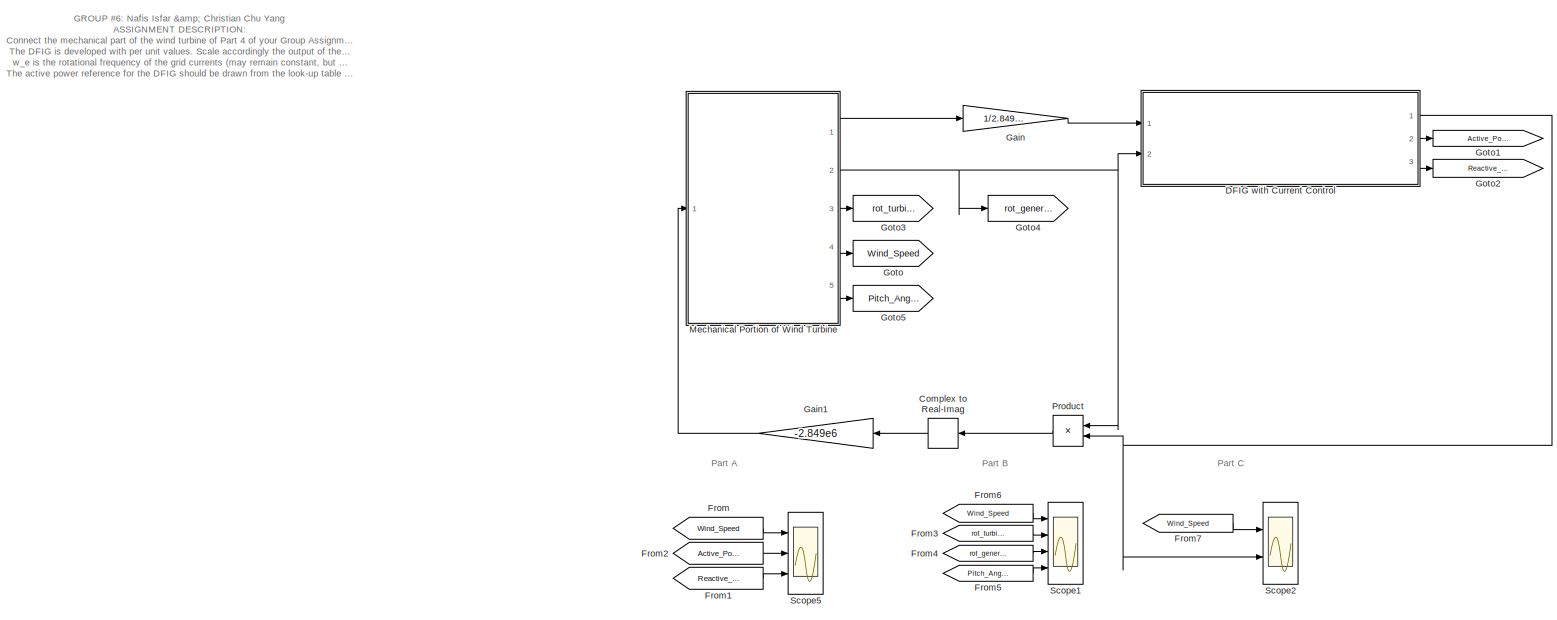
[diagram: root canvas - part 1/1, most of the canvas]
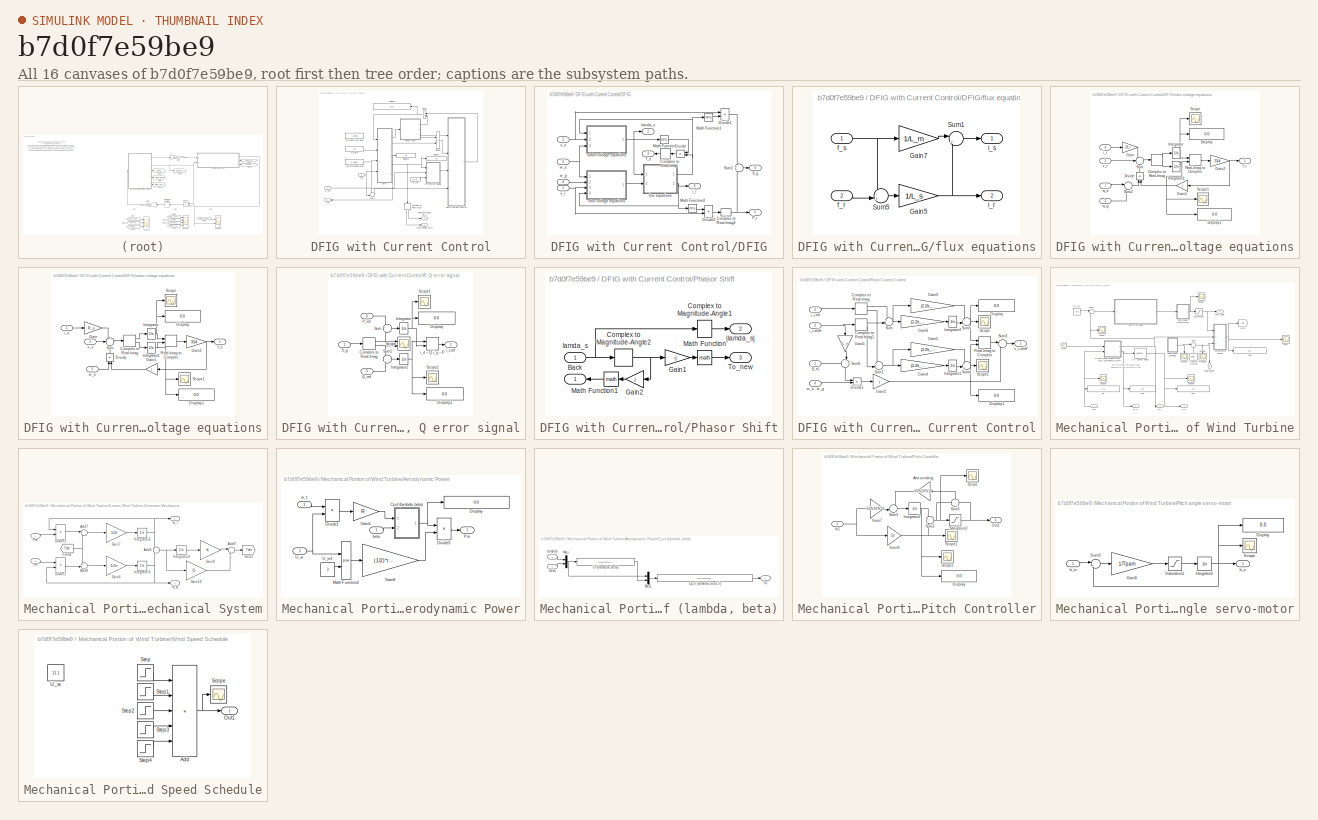
[diagram: thumbnail index - all 16 canvases of the model, root first then tree order]
MODEL slx_b7d0f7e59be9
KIND model
CONFIG AbsTol = auto
CONFIG EnableMultiTasking = off
CONFIG FixedStep = auto
CONFIG MaxStep = auto
CONFIG MinStep = auto
CONFIG RelTol = 1e-3
CONFIG SampleTimeConstraint = Unconstrained
CONFIG Solver = ode23t
CONFIG SolverName = ode23t
CONFIG StartTime = 0.0
CONFIG StopTime = 30
BLOCK [ComplexToRealImag] Complex to Real-Imag
  Output = Real
  Ports = [1, 1]
BLOCK [SubSystem] DFIG with Current Control
  Ports = [2, 3]
BLOCK [Outport] DFIG with Current Control/Active Power DFIG
  Port = 2
BLOCK [ComplexToRealImag] DFIG with Current Control/Complex to Real-Imag
  Ports = [1, 2]
BLOCK [SubSystem] DFIG with Current Control/DFIG
  Ports = [4, 5]
BLOCK [ComplexToRealImag] DFIG with Current Control/DFIG/Complex to Real-Imag
  Output = Imag
  Ports = [1, 1]
BLOCK [ComplexToRealImag] DFIG with Current Control/DFIG/Complex to Real-Imag2
  Output = Real
  Ports = [1, 1]
BLOCK [Product] DFIG with Current Control/DFIG/Divide
  Inputs = **
  Ports = [2, 1]
BLOCK [Product] DFIG with Current Control/DFIG/Divide1
  Inputs = **
  Ports = [2, 1]
BLOCK [Product] DFIG with Current Control/DFIG/Divide2
  Inputs = **
  Ports = [2, 1]
BLOCK [Math] DFIG with Current Control/DFIG/Math Function
  Operator = conj
  Ports = [1, 1]
  SignedPower = on
BLOCK [Math] DFIG with Current Control/DFIG/Math Function1
  Operator = conj
  Ports = [1, 1]
  SignedPower = on
BLOCK [Math] DFIG with Current Control/DFIG/Math Function2
  Operator = conj
  Ports = [1, 1]
  SignedPower = on
BLOCK [Outport] DFIG with Current Control/DFIG/P_r
  Port = 5
BLOCK [Outport] DFIG with Current Control/DFIG/S_g
  Port = 4
BLOCK [Sum] DFIG with Current Control/DFIG/Sum1
  Ports = [2, 1]
BLOCK [Outport] DFIG with Current Control/DFIG/T_e
  Port = 3
BLOCK [SubSystem] DFIG with Current Control/DFIG/flux equations
  Ports = [2, 2]
BLOCK [Gain] DFIG with Current Control/DFIG/flux equations/Gain5
  Gain = 1/L_s
BLOCK [Gain] DFIG with Current Control/DFIG/flux equations/Gain7
  Gain = 1/L_m
BLOCK [Sum] DFIG with Current Control/DFIG/flux equations/Sum1
  Inputs = |+-
  Ports = [2, 1]
BLOCK [Sum] DFIG with Current Control/DFIG/flux equations/Sum5
  Inputs = -+|
  Ports = [2, 1]
BLOCK [Inport] DFIG with Current Control/DFIG/flux equations/f_r
  Port = 2
BLOCK [Inport] DFIG with Current Control/DFIG/flux equations/f_s
BLOCK [Outport] DFIG with Current Control/DFIG/flux equations/i_r
  Port = 2
BLOCK [Outport] DFIG with Current Control/DFIG/flux equations/i_s
BLOCK [Outport] DFIG with Current Control/DFIG/i_r
  Port = 2
BLOCK [Outport] DFIG with Current Control/DFIG/lamda_s
BLOCK [SubSystem] DFIG with Current Control/DFIG/rotor voltage equations
  Ports = [4, 1]
BLOCK [ComplexToRealImag] DFIG with Current Control/DFIG/rotor voltage equations/Complex to Real-Imag
  Ports = [1, 2]
BLOCK [Display] DFIG with Current Control/DFIG/rotor voltage equations/Display
  Decimation = 1
  Ports = [1]
BLOCK [Display] DFIG with Current Control/DFIG/rotor voltage equations/Display1
  Decimation = 1
  Ports = [1]
BLOCK [Product] DFIG with Current Control/DFIG/rotor voltage equations/Divide
  Inputs = **
  Ports = [2, 1]
BLOCK [Gain] DFIG with Current Control/DFIG/rotor voltage equations/Gain
  Gain = R_r
BLOCK [Gain] DFIG with Current Control/DFIG/rotor voltage equations/Gain1
  Gain = j
BLOCK [Gain] DFIG with Current Control/DFIG/rotor voltage equations/Gain2
  Gain = 314
BLOCK [Integrator] DFIG with Current Control/DFIG/rotor voltage equations/Integrator
  InitialCondition = r_d_ini
  Ports = [1, 1]
BLOCK [Integrator] DFIG with Current Control/DFIG/rotor voltage equations/Integrator1
  InitialCondition = r_q_ini
  Ports = [1, 1]
BLOCK [RealImagToComplex] DFIG with Current Control/DFIG/rotor voltage equations/Real-Imag to Complex
  Ports = [2, 1]
BLOCK [Scope] DFIG with Current Control/DFIG/rotor voltage equations/Scope
  Floating = off
  NumInputPorts = 1
  Ports = [1]
  ScopeSpecificationString = Simulink.scopes.TimeScopeBlockCfg('CurrentConfiguration', extmgr.ConfigurationSet(extmgr.Configuration('Core','General UI',true),extmgr.Configuration('Core','Source UI',true),extmgr.Configuration('Sources','WiredSimulink',true,'DataLoggingVariableName','ScopeData7'),extmgr.Configuration('Visuals','Time Domain',true,'SerializedDisplays',{struct('MinYLimReal','-0.00026','MaxYLimReal','-0.00011','YLa...<+1460ch>
BLOCK [Scope] DFIG with Current Control/DFIG/rotor voltage equations/Scope1
  Floating = off
  NumInputPorts = 1
  Ports = [1]
  ScopeSpecificationString = Simulink.scopes.TimeScopeBlockCfg('CurrentConfiguration', extmgr.ConfigurationSet(extmgr.Configuration('Core','General UI',true),extmgr.Configuration('Core','Source UI',true),extmgr.Configuration('Sources','WiredSimulink',true,'DataLoggingVariableName','ScopeData8'),extmgr.Configuration('Visuals','Time Domain',true,'SerializedDisplays',{struct('MinYLimReal','-0.00453','MaxYLimReal','0.0044','YLabe...<+1456ch>
BLOCK [Sum] DFIG with Current Control/DFIG/rotor voltage equations/Sum
  Inputs = ---
  Ports = [3, 1]
BLOCK [Sum] DFIG with Current Control/DFIG/rotor voltage equations/Sum2
  Inputs = |+-
  Ports = [2, 1]
BLOCK [Outport] DFIG with Current Control/DFIG/rotor voltage equations/f_r
BLOCK [Inport] DFIG with Current Control/DFIG/rotor voltage equations/i_r
  Port = 4
BLOCK [Inport] DFIG with Current Control/DFIG/rotor voltage equations/v_r
  Port = 3
BLOCK [Inport] DFIG with Current Control/DFIG/rotor voltage equations/w_e
BLOCK [Inport] DFIG with Current Control/DFIG/rotor voltage equations/w_g
  Port = 2
BLOCK [SubSystem] DFIG with Current Control/DFIG/stator voltage equations
  Ports = [3, 1]
BLOCK [ComplexToRealImag] DFIG with Current Control/DFIG/stator voltage equations/Complex to Real-Imag
  Ports = [1, 2]
BLOCK [Display] DFIG with Current Control/DFIG/stator voltage equations/Display
  Decimation = 1
  Ports = [1]
BLOCK [Display] DFIG with Current Control/DFIG/stator voltage equations/Display1
  Decimation = 1
  Ports = [1]
BLOCK [Product] DFIG with Current Control/DFIG/stator voltage equations/Divide
  Inputs = **
  Ports = [2, 1]
BLOCK [Gain] DFIG with Current Control/DFIG/stator voltage equations/Gain
  Gain = R_s
BLOCK [Gain] DFIG with Current Control/DFIG/stator voltage equations/Gain1
  Gain = j
BLOCK [Gain] DFIG with Current Control/DFIG/stator voltage equations/Gain2
  Gain = 314
BLOCK [Integrator] DFIG with Current Control/DFIG/stator voltage equations/Integrator
  InitialCondition = s_d_ini
  Ports = [1, 1]
BLOCK [Integrator] DFIG with Current Control/DFIG/stator voltage equations/Integrator1
  InitialCondition = s_q_ini
  Ports = [1, 1]
BLOCK [RealImagToComplex] DFIG with Current Control/DFIG/stator voltage equations/Real-Imag to Complex
  Ports = [2, 1]
BLOCK [Scope] DFIG with Current Control/DFIG/stator voltage equations/Scope
  Floating = off
  NumInputPorts = 1
  Ports = [1]
  ScopeSpecificationString = Simulink.scopes.TimeScopeBlockCfg('CurrentConfiguration', extmgr.ConfigurationSet(extmgr.Configuration('Core','General UI',true),extmgr.Configuration('Core','Source UI',true),extmgr.Configuration('Sources','WiredSimulink',true,'DataLoggingVariableName','ScopeData5'),extmgr.Configuration('Visuals','Time Domain',true,'SerializedDisplays',{struct('MinYLimReal','0.00000207','MaxYLimReal','0.00000301',...<+1550ch>
BLOCK [Scope] DFIG with Current Control/DFIG/stator voltage equations/Scope1
  Floating = off
  NumInputPorts = 1
  Ports = [1]
  ScopeSpecificationString = Simulink.scopes.TimeScopeBlockCfg('CurrentConfiguration', extmgr.ConfigurationSet(extmgr.Configuration('Core','General UI',true),extmgr.Configuration('Core','Source UI',true),extmgr.Configuration('Sources','WiredSimulink',true,'DataLoggingVariableName','ScopeData6'),extmgr.Configuration('Visuals','Time Domain',true),extmgr.Configuration('Tools','Plot Navigation',true),extmgr.Configuration('Tools',...<+40ch>
BLOCK [Sum] DFIG with Current Control/DFIG/stator voltage equations/Sum
  Inputs = ---
  Ports = [3, 1]
BLOCK [Outport] DFIG with Current Control/DFIG/stator voltage equations/f_s
BLOCK [Inport] DFIG with Current Control/DFIG/stator voltage equations/i_s
BLOCK [Inport] DFIG with Current Control/DFIG/stator voltage equations/v_s
  Port = 2
BLOCK [Inport] DFIG with Current Control/DFIG/stator voltage equations/w_e
  Port = 3
BLOCK [Inport] DFIG with Current Control/DFIG/v_r
BLOCK [Inport] DFIG with Current Control/DFIG/v_s
  Port = 2
BLOCK [Inport] DFIG with Current Control/DFIG/w_e
  Port = 3
BLOCK [Inport] DFIG with Current Control/DFIG/w_g
  Port = 4
BLOCK [Display] DFIG with Current Control/Display1
  Decimation = 1
  Ports = [1]
BLOCK [Display] DFIG with Current Control/Display2
  Decimation = 1
  Ports = [1]
BLOCK [Display] DFIG with Current Control/Display3
  Decimation = 1
  Ports = [1]
BLOCK [Product] DFIG with Current Control/Divide1
  Inputs = **
  Ports = [2, 1]
BLOCK [Product] DFIG with Current Control/Divide2
  Inputs = **
  Ports = [2, 1]
BLOCK [SubSystem] DFIG with Current Control/P, Q error signal
  Ports = [3, 1]
BLOCK [ComplexToRealImag] DFIG with Current Control/P, Q error signal/Complex to Real-Imag
  Ports = [1, 2]
BLOCK [Display] DFIG with Current Control/P, Q error signal/Display
  Decimation = 1
  Ports = [1]
BLOCK [Display] DFIG with Current Control/P, Q error signal/Display1
  Decimation = 1
  Ports = [1]
BLOCK [Integrator] DFIG with Current Control/P, Q error signal/Integrator
  InitialCondition = p_err_ini
  Ports = [1, 1]
BLOCK [Integrator] DFIG with Current Control/P, Q error signal/Integrator1
  InitialCondition = q_err_ini
  Ports = [1, 1]
BLOCK [Inport] DFIG with Current Control/P, Q error signal/P_ref
  Port = 2
BLOCK [Inport] DFIG with Current Control/P, Q error signal/Q_ref
  Port = 3
BLOCK [Inport] DFIG with Current Control/P, Q error signal/S_g
BLOCK [Scope] DFIG with Current Control/P, Q error signal/Scope
  Floating = off
  NumInputPorts = 2
  Ports = [2]
  ScopeSpecificationString = Simulink.scopes.TimeScopeBlockCfg('CurrentConfiguration', extmgr.ConfigurationSet(extmgr.Configuration('Core','General UI',true),extmgr.Configuration('Core','Source UI',true),extmgr.Configuration('Sources','WiredSimulink',true),extmgr.Configuration('Visuals','Time Domain',true,'SerializedDisplays',{struct('MinYLimReal','-0.3511','MaxYLimReal','1.273','YLabelReal','','MinYLimMag','0.00000','MaxYLim...<+2018ch>
BLOCK [Scope] DFIG with Current Control/P, Q error signal/Scope1
  Floating = off
  NumInputPorts = 1
  Ports = [1]
  ScopeSpecificationString = Simulink.scopes.TimeScopeBlockCfg('CurrentConfiguration', extmgr.ConfigurationSet(extmgr.Configuration('Core','General UI',true),extmgr.Configuration('Core','Source UI',true),extmgr.Configuration('Sources','WiredSimulink',true,'DataLoggingVariableName','ScopeData9'),extmgr.Configuration('Visuals','Time Domain',true,'SerializedDisplays',{struct('MinYLimReal','0.2871','MaxYLimReal','0.70888','YLabel...<+1452ch>
BLOCK [Scope] DFIG with Current Control/P, Q error signal/Scope2
  Floating = off
  NumInputPorts = 1
  Ports = [1]
  ScopeSpecificationString = Simulink.scopes.TimeScopeBlockCfg('CurrentConfiguration', extmgr.ConfigurationSet(extmgr.Configuration('Core','General UI',true),extmgr.Configuration('Core','Source UI',true),extmgr.Configuration('Sources','WiredSimulink',true,'DataLoggingVariableName','ScopeData10'),extmgr.Configuration('Visuals','Time Domain',true,'SerializedDisplays',{struct('MinYLimReal','0.75231','MaxYLimReal','0.75287','YLab...<+1458ch>
BLOCK [Sum] DFIG with Current Control/P, Q error signal/Sum
  Inputs = +|-
  Ports = [2, 1]
BLOCK [Sum] DFIG with Current Control/P, Q error signal/Sum1
  Inputs = -|+
  Ports = [2, 1]
BLOCK [RealImagToComplex] DFIG with Current Control/P, Q error signal/i_d ~ Q i_q ~ P
  Ports = [2, 1]
BLOCK [Outport] DFIG with Current Control/P, Q error signal/i_r,ref
BLOCK [Inport] DFIG with Current Control/P_ref1
BLOCK [SubSystem] DFIG with Current Control/Phasor Shift
  Ports = [1, 3]
BLOCK [Outport] DFIG with Current Control/Phasor Shift/Back
BLOCK [ComplexToMagnitudeAngle] DFIG with Current Control/Phasor Shift/Complex to Magnitude-Angle1
  Output = Magnitude
  Ports = [1, 1]
BLOCK [ComplexToMagnitudeAngle] DFIG with Current Control/Phasor Shift/Complex to Magnitude-Angle2
  Output = Angle
  Ports = [1, 1]
BLOCK [Gain] DFIG with Current Control/Phasor Shift/Gain1
  Gain = -j
BLOCK [Gain] DFIG with Current Control/Phasor Shift/Gain2
  Gain = j
BLOCK [Math] DFIG with Current Control/Phasor Shift/Math Function
  Ports = [1, 1]
  SignedPower = on
BLOCK [Math] DFIG with Current Control/Phasor Shift/Math Function1
  Ports = [1, 1]
  SignedPower = on
BLOCK [Outport] DFIG with Current Control/Phasor Shift/To_new
  Port = 3
BLOCK [Inport] DFIG with Current Control/Phasor Shift/lamda_s
BLOCK [Outport] DFIG with Current Control/Phasor Shift/|lamda_s|
  Port = 2
BLOCK [Constant] DFIG with Current Control/Q_ref
  Value = Q_ref
BLOCK [Outport] DFIG with Current Control/Reactive Power DFIG
  Port = 3
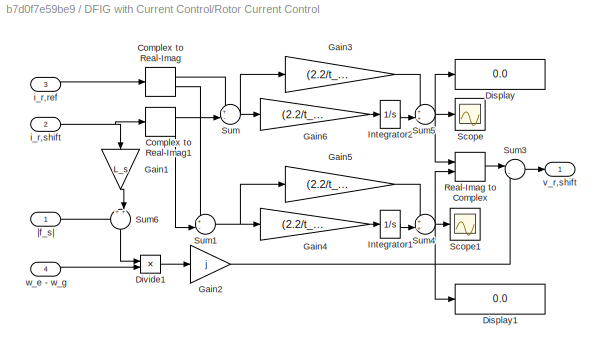
BLOCK [SubSystem] DFIG with Current Control/Rotor Current Control
  Ports = [4, 1]
BLOCK [ComplexToRealImag] DFIG with Current Control/Rotor Current Control/Complex to Real-Imag
  Ports = [1, 2]
BLOCK [ComplexToRealImag] DFIG with Current Control/Rotor Current Control/Complex to Real-Imag1
  Ports = [1, 2]
BLOCK [Display] DFIG with Current Control/Rotor Current Control/Display
  Decimation = 1
  Ports = [1]
BLOCK [Display] DFIG with Current Control/Rotor Current Control/Display1
  Decimation = 1
  Ports = [1]
BLOCK [Product] DFIG with Current Control/Rotor Current Control/Divide1
  Inputs = **
  Ports = [2, 1]
BLOCK [Gain] DFIG with Current Control/Rotor Current Control/Gain1
  Gain = L_s
BLOCK [Gain] DFIG with Current Control/Rotor Current Control/Gain2
  Gain = j
BLOCK [Gain] DFIG with Current Control/Rotor Current Control/Gain3
  Gain = (2.2/t_ir)*L_s
BLOCK [Gain] DFIG with Current Control/Rotor Current Control/Gain4
  Gain = (2.2/t_ir)*R_r
BLOCK [Gain] DFIG with Current Control/Rotor Current Control/Gain5
  Gain = (2.2/t_ir)*L_s
BLOCK [Gain] DFIG with Current Control/Rotor Current Control/Gain6
  Gain = (2.2/t_ir)*R_r
BLOCK [Integrator] DFIG with Current Control/Rotor Current Control/Integrator1
  InitialCondition = ini2
  Ports = [1, 1]
BLOCK [Integrator] DFIG with Current Control/Rotor Current Control/Integrator2
  InitialCondition = ini1
  Ports = [1, 1]
BLOCK [RealImagToComplex] DFIG with Current Control/Rotor Current Control/Real-Imag to Complex
  Ports = [2, 1]
BLOCK [Scope] DFIG with Current Control/Rotor Current Control/Scope
  Floating = off
  NumInputPorts = 1
  Ports = [1]
  ScopeSpecificationString = Simulink.scopes.TimeScopeBlockCfg('CurrentConfiguration', extmgr.ConfigurationSet(extmgr.Configuration('Core','General UI',true),extmgr.Configuration('Core','Source UI',true),extmgr.Configuration('Sources','WiredSimulink',true),extmgr.Configuration('Visuals','Time Domain',true,'SerializedDisplays',{struct('MinYLimReal','0.00272','MaxYLimReal','0.00299','YLabelReal','','MinYLimMag','0.00272','MaxYL...<+1411ch>
BLOCK [Scope] DFIG with Current Control/Rotor Current Control/Scope1
  Floating = off
  NumInputPorts = 1
  Ports = [1]
  ScopeSpecificationString = Simulink.scopes.TimeScopeBlockCfg('CurrentConfiguration', extmgr.ConfigurationSet(extmgr.Configuration('Core','General UI',true),extmgr.Configuration('Core','Source UI',true),extmgr.Configuration('Sources','WiredSimulink',true,'DataLoggingVariableName','ScopeData2'),extmgr.Configuration('Visuals','Time Domain',true),extmgr.Configuration('Tools','Plot Navigation',true),extmgr.Configuration('Tools',...<+40ch>
BLOCK [Sum] DFIG with Current Control/Rotor Current Control/Sum
  Inputs = +-|
  Ports = [2, 1]
BLOCK [Sum] DFIG with Current Control/Rotor Current Control/Sum1
  Inputs = +-|
  Ports = [2, 1]
BLOCK [Sum] DFIG with Current Control/Rotor Current Control/Sum3
  Inputs = |--
  Ports = [2, 1]
BLOCK [Sum] DFIG with Current Control/Rotor Current Control/Sum4
  Inputs = ++|
  Ports = [2, 1]
BLOCK [Sum] DFIG with Current Control/Rotor Current Control/Sum5
  Inputs = ++|
  Ports = [2, 1]
BLOCK [Sum] DFIG with Current Control/Rotor Current Control/Sum6
  Inputs = ++|
  Ports = [2, 1]
BLOCK [Inport] DFIG with Current Control/Rotor Current Control/i_r,ref
  Port = 3
BLOCK [Inport] DFIG with Current Control/Rotor Current Control/i_r,shift
  Port = 2
BLOCK [Outport] DFIG with Current Control/Rotor Current Control/v_r,shift
BLOCK [Inport] DFIG with Current Control/Rotor Current Control/w_e - w_g
  Port = 4
BLOCK [Inport] DFIG with Current Control/Rotor Current Control/|f_s|
BLOCK [Sum] DFIG with Current Control/Sum2
  Inputs = +-|
  Ports = [2, 1]
BLOCK [Outport] DFIG with Current Control/T_e
BLOCK [Constant] DFIG with Current Control/v_stator
  Value = 1.15
BLOCK [Inport] DFIG with Current Control/w_g
  Port = 2
BLOCK [Constant] DFIG with Current Control/w_synchronous//grid
  Value = 1.0000
BLOCK [Constant] DFIG with Current Control/w_turbine (gen side)
  Value = 1.0001
BLOCK [From] From
  GotoTag = Wind_Speed
BLOCK [From] From1
  GotoTag = Reactive_Power
BLOCK [From] From2
  GotoTag = Active_Power
BLOCK [From] From3
  GotoTag = rot_turbine
BLOCK [From] From4
  GotoTag = rot_generator
BLOCK [From] From5
  GotoTag = Pitch_Angle
BLOCK [From] From6
  GotoTag = Wind_Speed
BLOCK [From] From7
  GotoTag = Wind_Speed
BLOCK [Gain] Gain
  Gain = 1/2.849e6
BLOCK [Gain] Gain1
  Gain = -2.849e6
BLOCK [Goto] Goto
  GotoTag = Wind_Speed
BLOCK [Goto] Goto1
  GotoTag = Active_Power
BLOCK [Goto] Goto2
  GotoTag = Reactive_Power
BLOCK [Goto] Goto3
  GotoTag = rot_turbine
BLOCK [Goto] Goto4
  GotoTag = rot_generator
BLOCK [Goto] Goto5
  GotoTag = Pitch_Angle
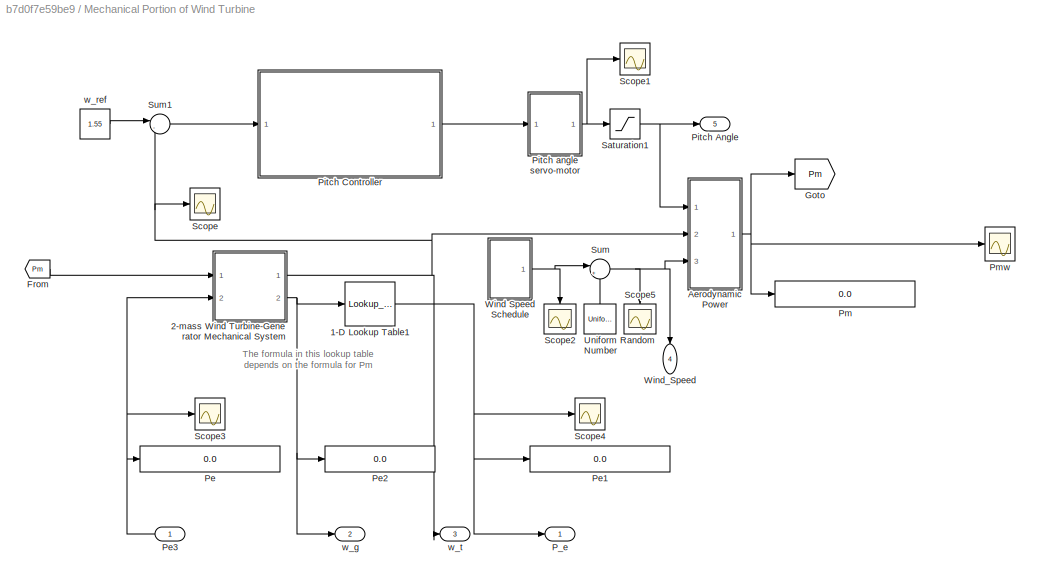
BLOCK [SubSystem] Mechanical Portion of Wind Turbine
  Ports = [1, 5]
BLOCK [Lookup_n-D] Mechanical Portion of Wind Turbine/1-D Lookup Table1
  BreakpointsForDimension1 = [0:0.05:1.55]
  InternalRulePriority = Speed
  NumberOfTableDimensions = 1
  Ports = [1, 1]
  RndMeth = Simplest
  Table = 763e3*[0:0.05:1.55].^3 %648e3*[0:0.05:1.55].^3
BLOCK [SubSystem] Mechanical Portion of Wind Turbine/2-mass Wind Turbine-Generator Mechanical System
  Ports = [2, 2]
BLOCK [Sum] Mechanical Portion of Wind Turbine/2-mass Wind Turbine-Generator Mechanical System/Add6
  Inputs = +|-
  Ports = [2, 1]
BLOCK [Sum] Mechanical Portion of Wind Turbine/2-mass Wind Turbine-Generator Mechanical System/Add7
  Inputs = |+-
  Ports = [2, 1]
BLOCK [Sum] Mechanical Portion of Wind Turbine/2-mass Wind Turbine-Generator Mechanical System/Add8
  Inputs = +-|
  Ports = [2, 1]
BLOCK [Sum] Mechanical Portion of Wind Turbine/2-mass Wind Turbine-Generator Mechanical System/Add9
  Inputs = |++
  Ports = [2, 1]
BLOCK [Product] Mechanical Portion of Wind Turbine/2-mass Wind Turbine-Generator Mechanical System/Divide1
  Inputs = */
  Ports = [2, 1]
BLOCK [Product] Mechanical Portion of Wind Turbine/2-mass Wind Turbine-Generator Mechanical System/Divide3
  Inputs = /*
  Ports = [2, 1]
BLOCK [From] Mechanical Portion of Wind Turbine/2-mass Wind Turbine-Generator Mechanical System/From2
  GotoTag = Tsht
BLOCK [Gain] Mechanical Portion of Wind Turbine/2-mass Wind Turbine-Generator Mechanical System/Gain10
  Gain = D
BLOCK [Gain] Mechanical Portion of Wind Turbine/2-mass Wind Turbine-Generator Mechanical System/Gain7
  Gain = 1/Jt
BLOCK [Gain] Mechanical Portion of Wind Turbine/2-mass Wind Turbine-Generator Mechanical System/Gain8
  Gain = 1/Jn
BLOCK [Gain] Mechanical Portion of Wind Turbine/2-mass Wind Turbine-Generator Mechanical System/Gain9
  Gain = K
BLOCK [Goto] Mechanical Portion of Wind Turbine/2-mass Wind Turbine-Generator Mechanical System/Goto2
  GotoTag = Tsht
BLOCK [Integrator] Mechanical Portion of Wind Turbine/2-mass Wind Turbine-Generator Mechanical System/Integrator2
  InitialCondition = w_init
  Ports = [1, 1]
BLOCK [Integrator] Mechanical Portion of Wind Turbine/2-mass Wind Turbine-Generator Mechanical System/Integrator3
  InitialCondition = w_inig
  Ports = [1, 1]
BLOCK [Integrator] Mechanical Portion of Wind Turbine/2-mass Wind Turbine-Generator Mechanical System/Integrator4
  InitialCondition = 0.35
  Ports = [1, 1]
BLOCK [Inport] Mechanical Portion of Wind Turbine/2-mass Wind Turbine-Generator Mechanical System/Pe
  Port = 2
BLOCK [Inport] Mechanical Portion of Wind Turbine/2-mass Wind Turbine-Generator Mechanical System/Pm
BLOCK [Outport] Mechanical Portion of Wind Turbine/2-mass Wind Turbine-Generator Mechanical System/w_g
  Port = 2
BLOCK [Outport] Mechanical Portion of Wind Turbine/2-mass Wind Turbine-Generator Mechanical System/w_t
BLOCK [SubSystem] Mechanical Portion of Wind Turbine/Aerodynamic Power
  Ports = [3, 1]
BLOCK [SubSystem] Mechanical Portion of Wind Turbine/Aerodynamic Power/Cp=f (lambda, beta)
  Ports = [2, 1]
BLOCK [Outport] Mechanical Portion of Wind Turbine/Aerodynamic Power/Cp=f (lambda, beta)/Cp
BLOCK [Fcn] Mechanical Portion of Wind Turbine/Aerodynamic Power/Cp=f (lambda, beta)/Cp=f (lambda,beta,li)
  Expr = c(1)*(c(2)*u(3)-c(3)*u(2)-c(4)*(u(2)^1)-c(5) )*exp(-c(6)*u(3))
  SampleTime = 0
BLOCK [Mux] Mechanical Portion of Wind Turbine/Aerodynamic Power/Cp=f (lambda, beta)/Mux
  DisplayOption = bar
  Inputs = 2
  Ports = [2, 1]
BLOCK [Mux] Mechanical Portion of Wind Turbine/Aerodynamic Power/Cp=f (lambda, beta)/Mux1
  DisplayOption = bar
  Inputs = 2
  Ports = [2, 1]
BLOCK [Inport] Mechanical Portion of Wind Turbine/Aerodynamic Power/Cp=f (lambda, beta)/beta
  Port = 2
BLOCK [Inport] Mechanical Portion of Wind Turbine/Aerodynamic Power/Cp=f (lambda, beta)/lambda
BLOCK [Fcn] Mechanical Portion of Wind Turbine/Aerodynamic Power/Cp=f (lambda, beta)/li=f(lambda,beta)
  Expr = 1/(u(1)+z(1)*u(2))-z(2)/(u(2)^3+1)
  SampleTime = 0
BLOCK [Display] Mechanical Portion of Wind Turbine/Aerodynamic Power/Display
  Decimation = 1
  Ports = [1]
BLOCK [Product] Mechanical Portion of Wind Turbine/Aerodynamic Power/Divide1
  Inputs = */
  Ports = [2, 1]
BLOCK [Product] Mechanical Portion of Wind Turbine/Aerodynamic Power/Divide3
  Inputs = **
  Ports = [2, 1]
BLOCK [Gain] Mechanical Portion of Wind Turbine/Aerodynamic Power/Gain1
  Gain = R
BLOCK [Gain] Mechanical Portion of Wind Turbine/Aerodynamic Power/Gain8
  Gain = (1/2)*ro*pi*(R^2)
BLOCK [Math] Mechanical Portion of Wind Turbine/Aerodynamic Power/Math Function2
  Operator = pow
  Ports = [2, 1]
BLOCK [Outport] Mechanical Portion of Wind Turbine/Aerodynamic Power/Pm
BLOCK [Inport] Mechanical Portion of Wind Turbine/Aerodynamic Power/U_w
  Port = 3
BLOCK [Constant] Mechanical Portion of Wind Turbine/Aerodynamic Power/U_w1
  Value = 3
BLOCK [Inport] Mechanical Portion of Wind Turbine/Aerodynamic Power/beta
BLOCK [Inport] Mechanical Portion of Wind Turbine/Aerodynamic Power/w_t
  Port = 2
BLOCK [From] Mechanical Portion of Wind Turbine/From
  GotoTag = Pm
BLOCK [Goto] Mechanical Portion of Wind Turbine/Goto
  GotoTag = Pm
BLOCK [Outport] Mechanical Portion of Wind Turbine/P_e
BLOCK [Display] Mechanical Portion of Wind Turbine/Pe
  Decimation = 1
  Ports = [1]
BLOCK [Display] Mechanical Portion of Wind Turbine/Pe1
  Decimation = 1
  Ports = [1]
BLOCK [Display] Mechanical Portion of Wind Turbine/Pe2
  Decimation = 1
  Ports = [1]
BLOCK [Inport] Mechanical Portion of Wind Turbine/Pe3
BLOCK [Outport] Mechanical Portion of Wind Turbine/Pitch Angle
  Port = 5
BLOCK [SubSystem] Mechanical Portion of Wind Turbine/Pitch Controller
  Ports = [1, 1]
BLOCK [Gain] Mechanical Portion of Wind Turbine/Pitch Controller/Anti-winding
  Gain = 50%20%10
BLOCK [Display] Mechanical Portion of Wind Turbine/Pitch Controller/Display
  Decimation = 1
  Ports = [1]
BLOCK [Gain] Mechanical Portion of Wind Turbine/Pitch Controller/Gain6
  Gain = 50
BLOCK [Gain] Mechanical Portion of Wind Turbine/Pitch Controller/Gain7
  Gain = 50%20%10
BLOCK [Inport] Mechanical Portion of Wind Turbine/Pitch Controller/In1
BLOCK [Integrator] Mechanical Portion of Wind Turbine/Pitch Controller/Integrator2
  InitialCondition = 0.34
  Ports = [1, 1]
BLOCK [Outport] Mechanical Portion of Wind Turbine/Pitch Controller/Out1
BLOCK [Saturate] Mechanical Portion of Wind Turbine/Pitch Controller/Saturation2
  LowerLimit = 0
  UpperLimit = 90
BLOCK [Scope] Mechanical Portion of Wind Turbine/Pitch Controller/Scope
  Floating = off
  NumInputPorts = 1
  Ports = [1]
  ScopeSpecificationString = Simulink.scopes.TimeScopeBlockCfg('CurrentConfiguration', extmgr.ConfigurationSet(extmgr.Configuration('Core','General UI',true),extmgr.Configuration('Core','Source UI',true),extmgr.Configuration('Sources','WiredSimulink',true,'DataLoggingVariableName','ScopeData1'),extmgr.Configuration('Visuals','Time Domain',true,'SerializedDisplays',{struct('MinYLimReal','-3.35959','MaxYLimReal','26.03222','YLa...<+1785ch>
BLOCK [Scope] Mechanical Portion of Wind Turbine/Pitch Controller/Scope1
  Floating = off
  NumInputPorts = 1
  Ports = [1]
  ScopeSpecificationString = Simulink.scopes.TimeScopeBlockCfg('CurrentConfiguration', extmgr.ConfigurationSet(extmgr.Configuration('Core','General UI',true),extmgr.Configuration('Core','Source UI',true),extmgr.Configuration('Sources','WiredSimulink',true,'DataLoggingVariableName','ScopeData3'),extmgr.Configuration('Visuals','Time Domain',true,'SerializedDisplays',{struct('MinYLimReal','-25.23943','MaxYLimReal','11.17384','YL...<+1809ch>
BLOCK [Scope] Mechanical Portion of Wind Turbine/Pitch Controller/Scope2
  Floating = off
  NumInputPorts = 1
  Ports = [1]
  ScopeSpecificationString = Simulink.scopes.TimeScopeBlockCfg('CurrentConfiguration', extmgr.ConfigurationSet(extmgr.Configuration('Core','General UI',true),extmgr.Configuration('Core','Source UI',true),extmgr.Configuration('Sources','WiredSimulink',true,'DataLoggingVariableName','ScopeData11'),extmgr.Configuration('Visuals','Time Domain',true,'SerializedDisplays',{struct('MinYLimReal','-2.46188','MaxYLimReal','25.32803','YL...<+1464ch>
BLOCK [Sum] Mechanical Portion of Wind Turbine/Pitch Controller/Sum2
  Inputs = +|+
  Ports = [2, 1]
BLOCK [Sum] Mechanical Portion of Wind Turbine/Pitch Controller/Sum3
  Inputs = ++|
  Ports = [2, 1]
BLOCK [Sum] Mechanical Portion of Wind Turbine/Pitch Controller/Sum5
  Inputs = -|+
  Ports = [2, 1]
BLOCK [SubSystem] Mechanical Portion of Wind Turbine/Pitch angle servo-motor
  Ports = [1, 1]
BLOCK [Display] Mechanical Portion of Wind Turbine/Pitch angle servo-motor/Display
  Decimation = 1
  Ports = [1]
BLOCK [Gain] Mechanical Portion of Wind Turbine/Pitch angle servo-motor/Gain8
  Gain = 1/Tpam
BLOCK [Integrator] Mechanical Portion of Wind Turbine/Pitch angle servo-motor/Integrator3
  Ports = [1, 1]
BLOCK [Saturate] Mechanical Portion of Wind Turbine/Pitch angle servo-motor/Saturation2
  LowerLimit = -8
  UpperLimit = 8
BLOCK [Scope] Mechanical Portion of Wind Turbine/Pitch angle servo-motor/Scope
  Floating = off
  NumInputPorts = 1
  Ports = [1]
  ScopeSpecificationString = Simulink.scopes.TimeScopeBlockCfg('CurrentConfiguration', extmgr.ConfigurationSet(extmgr.Configuration('Core','General UI',true),extmgr.Configuration('Core','Source UI',true),extmgr.Configuration('Sources','WiredSimulink',true,'DataLoggingVariableName','ScopeData12'),extmgr.Configuration('Visuals','Time Domain',true,'SerializedDisplays',{struct('MinYLimReal','-2.87778','MaxYLimReal','25.89999','YL...<+1464ch>
BLOCK [Sum] Mechanical Portion of Wind Turbine/Pitch angle servo-motor/Sum3
  Inputs = |+-
  Ports = [2, 1]
BLOCK [Inport] Mechanical Portion of Wind Turbine/Pitch angle servo-motor/b_in
BLOCK [Outport] Mechanical Portion of Wind Turbine/Pitch angle servo-motor/b_o
BLOCK [Display] Mechanical Portion of Wind Turbine/Pm
  Decimation = 1
  Ports = [1]
BLOCK [Scope] Mechanical Portion of Wind Turbine/Pmw
  Floating = off
  NumInputPorts = 1
  Ports = [1]
  ScopeSpecificationString = Simulink.scopes.TimeScopeBlockCfg('CurrentConfiguration', extmgr.ConfigurationSet(extmgr.Configuration('Core','General UI',true),extmgr.Configuration('Core','Source UI',true),extmgr.Configuration('Sources','WiredSimulink',true,'DataLoggingVariableName','ScopeData1'),extmgr.Configuration('Visuals','Time Domain',true,'SerializedDisplays',{struct('MinYLimReal','-1185833.11423','MaxYLimReal','5656030....<+1596ch>
BLOCK [Saturate] Mechanical Portion of Wind Turbine/Saturation1
  LowerLimit = 0
  UpperLimit = 90
BLOCK [Scope] Mechanical Portion of Wind Turbine/Scope
  Floating = off
  NumInputPorts = 1
  Ports = [1]
  ScopeSpecificationString = Simulink.scopes.TimeScopeBlockCfg('CurrentConfiguration', extmgr.ConfigurationSet(extmgr.Configuration('Core','General UI',true),extmgr.Configuration('Core','Source UI',true),extmgr.Configuration('Sources','WiredSimulink',true,'DataLoggingVariableName','ScopeData4'),extmgr.Configuration('Visuals','Time Domain',true,'SerializedDisplays',{struct('MinYLimReal','1.04521','MaxYLimReal','1.77348','YLabe...<+1495ch>
BLOCK [Scope] Mechanical Portion of Wind Turbine/Scope1
  Floating = off
  NumInputPorts = 1
  Ports = [1]
  ScopeSpecificationString = Simulink.scopes.TimeScopeBlockCfg('CurrentConfiguration', extmgr.ConfigurationSet(extmgr.Configuration('Core','General UI',true),extmgr.Configuration('Core','Source UI',true),extmgr.Configuration('Sources','WiredSimulink',true,'DataLoggingVariableName','ScopeData5'),extmgr.Configuration('Visuals','Time Domain',true,'SerializedDisplays',{struct('MinYLimReal','-2.77344','MaxYLimReal','24.96095','YLa...<+1475ch>
BLOCK [Scope] Mechanical Portion of Wind Turbine/Scope2
  Floating = off
  NumInputPorts = 1
  Ports = [1]
  ScopeSpecificationString = Simulink.scopes.TimeScopeBlockCfg('CurrentConfiguration', extmgr.ConfigurationSet(extmgr.Configuration('Core','General UI',true),extmgr.Configuration('Core','Source UI',true),extmgr.Configuration('Sources','WiredSimulink',true,'DataLoggingVariableName','ScopeData1'),extmgr.Configuration('Visuals','Time Domain',true),extmgr.Configuration('Tools','Plot Navigation',true),extmgr.Configuration('Tools',...<+40ch>
BLOCK [Scope] Mechanical Portion of Wind Turbine/Scope3
  Floating = off
  NumInputPorts = 1
  Ports = [1]
  ScopeSpecificationString = Simulink.scopes.TimeScopeBlockCfg('CurrentConfiguration', extmgr.ConfigurationSet(extmgr.Configuration('Core','General UI',true),extmgr.Configuration('Core','Source UI',true),extmgr.Configuration('Sources','WiredSimulink',true,'DataLoggingVariableName','ScopeData2'),extmgr.Configuration('Visuals','Time Domain',true,'SerializedDisplays',{struct('MinYLimReal','-409190.28661','MaxYLimReal','6326342.8...<+1541ch>
BLOCK [Scope] Mechanical Portion of Wind Turbine/Scope4
  Floating = off
  NumInputPorts = 1
  Ports = [1]
  ScopeSpecificationString = Simulink.scopes.TimeScopeBlockCfg('CurrentConfiguration', extmgr.ConfigurationSet(extmgr.Configuration('Core','General UI',true),extmgr.Configuration('Core','Source UI',true),extmgr.Configuration('Sources','WiredSimulink',true,'DataLoggingVariableName','ScopeData3'),extmgr.Configuration('Visuals','Time Domain',true,'SerializedDisplays',{struct('MinYLimReal','-4107721.62715','MaxYLimReal','37789748...<+1539ch>
BLOCK [Scope] Mechanical Portion of Wind Turbine/Scope5
  Floating = off
  NumInputPorts = 1
  Ports = [1]
  ScopeSpecificationString = Simulink.scopes.TimeScopeBlockCfg('CurrentConfiguration', extmgr.ConfigurationSet(extmgr.Configuration('Core','General UI',true),extmgr.Configuration('Core','Source UI',true),extmgr.Configuration('Sources','WiredSimulink',true,'DataLoggingVariableName','ScopeData2'),extmgr.Configuration('Visuals','Time Domain',true,'SerializedDisplays',{struct('MinYLimReal','6.38578','MaxYLimReal','19.62321','YLab...<+1453ch>
BLOCK [Sum] Mechanical Portion of Wind Turbine/Sum
  Inputs = |++
  Ports = [2, 1]
BLOCK [Sum] Mechanical Portion of Wind Turbine/Sum1
  Inputs = |-+
  Ports = [2, 1]
BLOCK [UniformRandomNumber] Mechanical Portion of Wind Turbine/Uniform Random Number
  Maximum = 0.3
  Minimum = -0.3
  SampleTime = 0.1
BLOCK [SubSystem] Mechanical Portion of Wind Turbine/Wind Speed Schedule
  Ports = [0, 1]
BLOCK [Sum] Mechanical Portion of Wind Turbine/Wind Speed Schedule/Add
  IconShape = rectangular
  Inputs = +++++
  Ports = [5, 1]
BLOCK [Outport] Mechanical Portion of Wind Turbine/Wind Speed Schedule/Out1
BLOCK [Scope] Mechanical Portion of Wind Turbine/Wind Speed Schedule/Scope
  Floating = off
  NumInputPorts = 1
  Ports = [1]
  ScopeSpecificationString = Simulink.scopes.TimeScopeBlockCfg('CurrentConfiguration', extmgr.ConfigurationSet(extmgr.Configuration('Core','General UI',true),extmgr.Configuration('Core','Source UI',true),extmgr.Configuration('Sources','WiredSimulink',true,'DataLoggingVariableName','ScopeData6'),extmgr.Configuration('Visuals','Time Domain',true,'SerializedDisplays',{struct('MinYLimReal','6.75','MaxYLimReal','19.25','YLabelReal...<+1729ch>
BLOCK [Step] Mechanical Portion of Wind Turbine/Wind Speed Schedule/Step
  After = 8
  Before = 11.1
  SampleTime = 0
  Time = 5
BLOCK [Step] Mechanical Portion of Wind Turbine/Wind Speed Schedule/Step1
  After = 4
  SampleTime = 0
  Time = 10
BLOCK [Step] Mechanical Portion of Wind Turbine/Wind Speed Schedule/Step2
  After = 4
  SampleTime = 0
  Time = 15
BLOCK [Step] Mechanical Portion of Wind Turbine/Wind Speed Schedule/Step3
  After = 2
  SampleTime = 0
  Time = 20
BLOCK [Step] Mechanical Portion of Wind Turbine/Wind Speed Schedule/Step4
  After = -8
  SampleTime = 0
  Time = 25
BLOCK [Constant] Mechanical Portion of Wind Turbine/Wind Speed Schedule/U_w
  Value = 11.1
BLOCK [Outport] Mechanical Portion of Wind Turbine/Wind_Speed
  Port = 4
BLOCK [Outport] Mechanical Portion of Wind Turbine/w_g
  Port = 2
BLOCK [Constant] Mechanical Portion of Wind Turbine/w_ref
  Value = 1.55
BLOCK [Outport] Mechanical Portion of Wind Turbine/w_t
  Port = 3
BLOCK [Product] Product
  Ports = [2, 1]
BLOCK [Scope] Scope1
  Floating = off
  NumInputPorts = 4
  Ports = [4]
  ScopeSpecificationString = Simulink.scopes.TimeScopeBlockCfg('CurrentConfiguration', extmgr.ConfigurationSet(extmgr.Configuration('Core','General UI',true),extmgr.Configuration('Core','Source UI',true),extmgr.Configuration('Sources','WiredSimulink',true,'DataLoggingVariableName','ScopeData4'),extmgr.Configuration('Visuals','Time Domain',true,'SerializedDisplays',{struct('MinYLimReal','6.38578','MaxYLimReal','19.62321','YLab...<+3834ch>
BLOCK [Scope] Scope2
  Floating = off
  NumInputPorts = 2
  Ports = [2]
  ScopeSpecificationString = Simulink.scopes.TimeScopeBlockCfg('CurrentConfiguration', extmgr.ConfigurationSet(extmgr.Configuration('Core','General UI',true),extmgr.Configuration('Core','Source UI',true),extmgr.Configuration('Sources','WiredSimulink',true,'DataLoggingVariableName','ScopeData1'),extmgr.Configuration('Visuals','Time Domain',true,'SerializedDisplays',{struct('MinYLimReal','6.38578','MaxYLimReal','19.62321','YLab...<+2260ch>
BLOCK [Scope] Scope5
  Floating = off
  NumInputPorts = 3
  Ports = [3]
  ScopeSpecificationString = Simulink.scopes.TimeScopeBlockCfg('CurrentConfiguration', extmgr.ConfigurationSet(extmgr.Configuration('Core','General UI',true),extmgr.Configuration('Core','Source UI',true),extmgr.Configuration('Sources','WiredSimulink',true,'DataLoggingVariableName','ScopeData3'),extmgr.Configuration('Visuals','Time Domain',true,'SerializedDisplays',{struct('MinYLimReal','6.38578','MaxYLimReal','19.62321','YLab...<+3086ch>
ANNOTATION (root): GROUP #6: Nafis Isfar & Christian Chu Yang ASSIGNMENT DESCRIPTION: Connect the mechanical part of the wind turbine of Part 4 of your Group Assignment to the Doubly-Fed Induction Generator (DFIG) with Vector Control provided in the module "8. Vector Control" of the course. Notes for the integration of the 2 models: The DFIG is developed with per unit values. Scale accordingly the output of the mech...<+1121ch>
ANNOTATION (root): Part A
ANNOTATION (root): Part B
ANNOTATION (root): Part C
ANNOTATION Mechanical Portion of Wind Turbine: The formula in this lookup table depends on the formula for Pm
LINE Complex to Real-Imag:1 -> Gain1:1
LINE DFIG with Current Control/Complex to Real-Imag:1 -> DFIG with Current Control/Active Power DFIG:1
LINE DFIG with Current Control/Complex to Real-Imag:2 -> DFIG with Current Control/Reactive Power DFIG:1
NET DFIG with Current Control/DFIG/Complex to Real-Imag2:1 -> DFIG with Current Control/DFIG/P_r:1, DFIG with Current Control/DFIG/Sum1:2
LINE DFIG with Current Control/DFIG/Complex to Real-Imag:1 -> DFIG with Current Control/DFIG/T_e:1
LINE DFIG with Current Control/DFIG/Divide1:1 -> DFIG with Current Control/DFIG/Sum1:1
LINE DFIG with Current Control/DFIG/Divide2:1 -> DFIG with Current Control/DFIG/Complex to Real-Imag2:1
LINE DFIG with Current Control/DFIG/Divide:1 -> DFIG with Current Control/DFIG/Complex to Real-Imag:1
LINE DFIG with Current Control/DFIG/Math Function1:1 -> DFIG with Current Control/DFIG/Divide1:2
LINE DFIG with Current Control/DFIG/Math Function2:1 -> DFIG with Current Control/DFIG/Divide2:1
LINE DFIG with Current Control/DFIG/Math Function:1 -> DFIG with Current Control/DFIG/Divide:1
LINE DFIG with Current Control/DFIG/Sum1:1 -> DFIG with Current Control/DFIG/S_g:1
NET DFIG with Current Control/DFIG/flux equations/Gain5:1 -> DFIG with Current Control/DFIG/flux equations/Sum1:2, DFIG with Current Control/DFIG/flux equations/i_r:1
LINE DFIG with Current Control/DFIG/flux equations/Gain7:1 -> DFIG with Current Control/DFIG/flux equations/Sum1:1
LINE DFIG with Current Control/DFIG/flux equations/Sum1:1 -> DFIG with Current Control/DFIG/flux equations/i_s:1
LINE DFIG with Current Control/DFIG/flux equations/Sum5:1 -> DFIG with Current Control/DFIG/flux equations/Gain5:1
LINE DFIG with Current Control/DFIG/flux equations/f_r:1 -> DFIG with Current Control/DFIG/flux equations/Sum5:2
NET DFIG with Current Control/DFIG/flux equations/f_s:1 -> DFIG with Current Control/DFIG/flux equations/Gain7:1, DFIG with Current Control/DFIG/flux equations/Sum5:1
NET DFIG with Current Control/DFIG/flux equations:1 -> DFIG with Current Control/DFIG/Divide:2, DFIG with Current Control/DFIG/Math Function1:1, DFIG with Current Control/DFIG/stator voltage equations:1
NET DFIG with Current Control/DFIG/flux equations:2 -> DFIG with Current Control/DFIG/Math Function2:1, DFIG with Current Control/DFIG/i_r:1, DFIG with Current Control/DFIG/rotor voltage equations:4
LINE DFIG with Current Control/DFIG/rotor voltage equations/Complex to Real-Imag:1 -> DFIG with Current Control/DFIG/rotor voltage equations/Integrator:1
LINE DFIG with Current Control/DFIG/rotor voltage equations/Complex to Real-Imag:2 -> DFIG with Current Control/DFIG/rotor voltage equations/Integrator1:1
LINE DFIG with Current Control/DFIG/rotor voltage equations/Divide:1 -> DFIG with Current Control/DFIG/rotor voltage equations/Sum:3
LINE DFIG with Current Control/DFIG/rotor voltage equations/Gain1:1 -> DFIG with Current Control/DFIG/rotor voltage equations/Divide:2
NET DFIG with Current Control/DFIG/rotor voltage equations/Gain2:1 -> DFIG with Current Control/DFIG/rotor voltage equations/Gain1:1, DFIG with Current Control/DFIG/rotor voltage equations/f_r:1
LINE DFIG with Current Control/DFIG/rotor voltage equations/Gain:1 -> DFIG with Current Control/DFIG/rotor voltage equations/Sum:1
NET DFIG with Current Control/DFIG/rotor voltage equations/Integrator1:1 -> DFIG with Current Control/DFIG/rotor voltage equations/Display1:1, DFIG with Current Control/DFIG/rotor voltage equations/Real-Imag to Complex:2, DFIG with Current Control/DFIG/rotor voltage equations/Scope1:1
NET DFIG with Current Control/DFIG/rotor voltage equations/Integrator:1 -> DFIG with Current Control/DFIG/rotor voltage equations/Display:1, DFIG with Current Control/DFIG/rotor voltage equations/Real-Imag to Complex:1, DFIG with Current Control/DFIG/rotor voltage equations/Scope:1
LINE DFIG with Current Control/DFIG/rotor voltage equations/Real-Imag to Complex:1 -> DFIG with Current Control/DFIG/rotor voltage equations/Gain2:1
LINE DFIG with Current Control/DFIG/rotor voltage equations/Sum2:1 -> DFIG with Current Control/DFIG/rotor voltage equations/Divide:1
LINE DFIG with Current Control/DFIG/rotor voltage equations/Sum:1 -> DFIG with Current Control/DFIG/rotor voltage equations/Complex to Real-Imag:1
LINE DFIG with Current Control/DFIG/rotor voltage equations/i_r:1 -> DFIG with Current Control/DFIG/rotor voltage equations/Gain:1
LINE DFIG with Current Control/DFIG/rotor voltage equations/v_r:1 -> DFIG with Current Control/DFIG/rotor voltage equations/Sum:2
LINE DFIG with Current Control/DFIG/rotor voltage equations/w_e:1 -> DFIG with Current Control/DFIG/rotor voltage equations/Sum2:1
LINE DFIG with Current Control/DFIG/rotor voltage equations/w_g:1 -> DFIG with Current Control/DFIG/rotor voltage equations/Sum2:2
LINE DFIG with Current Control/DFIG/rotor voltage equations:1 -> DFIG with Current Control/DFIG/flux equations:2
LINE DFIG with Current Control/DFIG/stator voltage equations/Complex to Real-Imag:1 -> DFIG with Current Control/DFIG/stator voltage equations/Integrator:1
LINE DFIG with Current Control/DFIG/stator voltage equations/Complex to Real-Imag:2 -> DFIG with Current Control/DFIG/stator voltage equations/Integrator1:1
LINE DFIG with Current Control/DFIG/stator voltage equations/Divide:1 -> DFIG with Current Control/DFIG/stator voltage equations/Sum:3
LINE DFIG with Current Control/DFIG/stator voltage equations/Gain1:1 -> DFIG with Current Control/DFIG/stator voltage equations/Divide:2
NET DFIG with Current Control/DFIG/stator voltage equations/Gain2:1 -> DFIG with Current Control/DFIG/stator voltage equations/Gain1:1, DFIG with Current Control/DFIG/stator voltage equations/f_s:1
LINE DFIG with Current Control/DFIG/stator voltage equations/Gain:1 -> DFIG with Current Control/DFIG/stator voltage equations/Sum:1
NET DFIG with Current Control/DFIG/stator voltage equations/Integrator1:1 -> DFIG with Current Control/DFIG/stator voltage equations/Display1:1, DFIG with Current Control/DFIG/stator voltage equations/Real-Imag to Complex:2, DFIG with Current Control/DFIG/stator voltage equations/Scope1:1
NET DFIG with Current Control/DFIG/stator voltage equations/Integrator:1 -> DFIG with Current Control/DFIG/stator voltage equations/Display:1, DFIG with Current Control/DFIG/stator voltage equations/Real-Imag to Complex:1, DFIG with Current Control/DFIG/stator voltage equations/Scope:1
LINE DFIG with Current Control/DFIG/stator voltage equations/Real-Imag to Complex:1 -> DFIG with Current Control/DFIG/stator voltage equations/Gain2:1
LINE DFIG with Current Control/DFIG/stator voltage equations/Sum:1 -> DFIG with Current Control/DFIG/stator voltage equations/Complex to Real-Imag:1
LINE DFIG with Current Control/DFIG/stator voltage equations/i_s:1 -> DFIG with Current Control/DFIG/stator voltage equations/Gain:1
LINE DFIG with Current Control/DFIG/stator voltage equations/v_s:1 -> DFIG with Current Control/DFIG/stator voltage equations/Sum:2
LINE DFIG with Current Control/DFIG/stator voltage equations/w_e:1 -> DFIG with Current Control/DFIG/stator voltage equations/Divide:1
NET DFIG with Current Control/DFIG/stator voltage equations:1 -> DFIG with Current Control/DFIG/Math Function:1, DFIG with Current Control/DFIG/flux equations:1, DFIG with Current Control/DFIG/lamda_s:1
NET DFIG with Current Control/DFIG/v_r:1 -> DFIG with Current Control/DFIG/Divide2:2, DFIG with Current Control/DFIG/rotor voltage equations:3
NET DFIG with Current Control/DFIG/v_s:1 -> DFIG with Current Control/DFIG/Divide1:1, DFIG with Current Control/DFIG/stator voltage equations:2
NET DFIG with Current Control/DFIG/w_e:1 -> DFIG with Current Control/DFIG/rotor voltage equations:1, DFIG with Current Control/DFIG/stator voltage equations:3
LINE DFIG with Current Control/DFIG/w_g:1 -> DFIG with Current Control/DFIG/rotor voltage equations:2
LINE DFIG with Current Control/DFIG:1 -> DFIG with Current Control/Phasor Shift:1
LINE DFIG with Current Control/DFIG:2 -> DFIG with Current Control/Divide1:2
NET DFIG with Current Control/DFIG:3 -> DFIG with Current Control/Display2:1, DFIG with Current Control/T_e:1
NET DFIG with Current Control/DFIG:4 -> DFIG with Current Control/Complex to Real-Imag:1, DFIG with Current Control/Display1:1, DFIG with Current Control/P, Q error signal:1
LINE DFIG with Current Control/Divide1:1 -> DFIG with Current Control/Rotor Current Control:2
NET DFIG with Current Control/Divide2:1 -> DFIG with Current Control/DFIG:1, DFIG with Current Control/Display3:1
NET DFIG with Current Control/P, Q error signal/Complex to Real-Imag:1 -> DFIG with Current Control/P, Q error signal/Scope:1, DFIG with Current Control/P, Q error signal/Sum:2
NET DFIG with Current Control/P, Q error signal/Complex to Real-Imag:2 -> DFIG with Current Control/P, Q error signal/Scope:2, DFIG with Current Control/P, Q error signal/Sum1:1
NET DFIG with Current Control/P, Q error signal/Integrator1:1 -> DFIG with Current Control/P, Q error signal/Display1:1, DFIG with Current Control/P, Q error signal/Scope2:1, DFIG with Current Control/P, Q error signal/i_d ~ Q i_q ~ P:1
NET DFIG with Current Control/P, Q error signal/Integrator:1 -> DFIG with Current Control/P, Q error signal/Display:1, DFIG with Current Control/P, Q error signal/Scope1:1, DFIG with Current Control/P, Q error signal/i_d ~ Q i_q ~ P:2
LINE DFIG with Current Control/P, Q error signal/P_ref:1 -> DFIG with Current Control/P, Q error signal/Sum:1
LINE DFIG with Current Control/P, Q error signal/Q_ref:1 -> DFIG with Current Control/P, Q error signal/Sum1:2
LINE DFIG with Current Control/P, Q error signal/S_g:1 -> DFIG with Current Control/P, Q error signal/Complex to Real-Imag:1
LINE DFIG with Current Control/P, Q error signal/Sum1:1 -> DFIG with Current Control/P, Q error signal/Integrator1:1
LINE DFIG with Current Control/P, Q error signal/Sum:1 -> DFIG with Current Control/P, Q error signal/Integrator:1
LINE DFIG with Current Control/P, Q error signal/i_d ~ Q i_q ~ P:1 -> DFIG with Current Control/P, Q error signal/i_r,ref:1
LINE DFIG with Current Control/P, Q error signal:1 -> DFIG with Current Control/Rotor Current Control:3
LINE DFIG with Current Control/P_ref1:1 -> DFIG with Current Control/P, Q error signal:2
LINE DFIG with Current Control/Phasor Shift/Complex to Magnitude-Angle1:1 -> DFIG with Current Control/Phasor Shift/|lamda_s|:1
NET DFIG with Current Control/Phasor Shift/Complex to Magnitude-Angle2:1 -> DFIG with Current Control/Phasor Shift/Gain1:1, DFIG with Current Control/Phasor Shift/Gain2:1
LINE DFIG with Current Control/Phasor Shift/Gain1:1 -> DFIG with Current Control/Phasor Shift/Math Function:1
LINE DFIG with Current Control/Phasor Shift/Gain2:1 -> DFIG with Current Control/Phasor Shift/Math Function1:1
LINE DFIG with Current Control/Phasor Shift/Math Function1:1 -> DFIG with Current Control/Phasor Shift/Back:1
LINE DFIG with Current Control/Phasor Shift/Math Function:1 -> DFIG with Current Control/Phasor Shift/To_new:1
NET DFIG with Current Control/Phasor Shift/lamda_s:1 -> DFIG with Current Control/Phasor Shift/Complex to Magnitude-Angle1:1, DFIG with Current Control/Phasor Shift/Complex to Magnitude-Angle2:1
LINE DFIG with Current Control/Phasor Shift:1 -> DFIG with Current Control/Divide2:2
LINE DFIG with Current Control/Phasor Shift:2 -> DFIG with Current Control/Rotor Current Control:1
LINE DFIG with Current Control/Phasor Shift:3 -> DFIG with Current Control/Divide1:1
LINE DFIG with Current Control/Q_ref:1 -> DFIG with Current Control/P, Q error signal:3
LINE DFIG with Current Control/Rotor Current Control/Complex to Real-Imag1:1 -> DFIG with Current Control/Rotor Current Control/Sum:2
LINE DFIG with Current Control/Rotor Current Control/Complex to Real-Imag1:2 -> DFIG with Current Control/Rotor Current Control/Sum1:2
LINE DFIG with Current Control/Rotor Current Control/Complex to Real-Imag:1 -> DFIG with Current Control/Rotor Current Control/Sum:1
LINE DFIG with Current Control/Rotor Current Control/Complex to Real-Imag:2 -> DFIG with Current Control/Rotor Current Control/Sum1:1
LINE DFIG with Current Control/Rotor Current Control/Divide1:1 -> DFIG with Current Control/Rotor Current Control/Gain2:1
LINE DFIG with Current Control/Rotor Current Control/Gain1:1 -> DFIG with Current Control/Rotor Current Control/Sum6:2
LINE DFIG with Current Control/Rotor Current Control/Gain2:1 -> DFIG with Current Control/Rotor Current Control/Sum3:2
LINE DFIG with Current Control/Rotor Current Control/Gain3:1 -> DFIG with Current Control/Rotor Current Control/Sum5:1
LINE DFIG with Current Control/Rotor Current Control/Gain4:1 -> DFIG with Current Control/Rotor Current Control/Integrator1:1
LINE DFIG with Current Control/Rotor Current Control/Gain5:1 -> DFIG with Current Control/Rotor Current Control/Sum4:1
LINE DFIG with Current Control/Rotor Current Control/Gain6:1 -> DFIG with Current Control/Rotor Current Control/Integrator2:1
LINE DFIG with Current Control/Rotor Current Control/Integrator1:1 -> DFIG with Current Control/Rotor Current Control/Sum4:2
LINE DFIG with Current Control/Rotor Current Control/Integrator2:1 -> DFIG with Current Control/Rotor Current Control/Sum5:2
LINE DFIG with Current Control/Rotor Current Control/Real-Imag to Complex:1 -> DFIG with Current Control/Rotor Current Control/Sum3:1
NET DFIG with Current Control/Rotor Current Control/Sum1:1 -> DFIG with Current Control/Rotor Current Control/Gain4:1, DFIG with Current Control/Rotor Current Control/Gain5:1
LINE DFIG with Current Control/Rotor Current Control/Sum3:1 -> DFIG with Current Control/Rotor Current Control/v_r,shift:1
NET DFIG with Current Control/Rotor Current Control/Sum4:1 -> DFIG with Current Control/Rotor Current Control/Display1:1, DFIG with Current Control/Rotor Current Control/Real-Imag to Complex:2, DFIG with Current Control/Rotor Current Control/Scope1:1
NET DFIG with Current Control/Rotor Current Control/Sum5:1 -> DFIG with Current Control/Rotor Current Control/Display:1, DFIG with Current Control/Rotor Current Control/Real-Imag to Complex:1, DFIG with Current Control/Rotor Current Control/Scope:1
LINE DFIG with Current Control/Rotor Current Control/Sum6:1 -> DFIG with Current Control/Rotor Current Control/Divide1:1
NET DFIG with Current Control/Rotor Current Control/Sum:1 -> DFIG with Current Control/Rotor Current Control/Gain3:1, DFIG with Current Control/Rotor Current Control/Gain6:1
LINE DFIG with Current Control/Rotor Current Control/i_r,ref:1 -> DFIG with Current Control/Rotor Current Control/Complex to Real-Imag:1
NET DFIG with Current Control/Rotor Current Control/i_r,shift:1 -> DFIG with Current Control/Rotor Current Control/Complex to Real-Imag1:1, DFIG with Current Control/Rotor Current Control/Gain1:1
LINE DFIG with Current Control/Rotor Current Control/w_e - w_g:1 -> DFIG with Current Control/Rotor Current Control/Divide1:2
LINE DFIG with Current Control/Rotor Current Control/|f_s|:1 -> DFIG with Current Control/Rotor Current Control/Sum6:1
LINE DFIG with Current Control/Rotor Current Control:1 -> DFIG with Current Control/Divide2:1
LINE DFIG with Current Control/Sum2:1 -> DFIG with Current Control/Rotor Current Control:4
LINE DFIG with Current Control/v_stator:1 -> DFIG with Current Control/DFIG:2
NET DFIG with Current Control/w_g:1 -> DFIG with Current Control/DFIG:4, DFIG with Current Control/Sum2:2
NET DFIG with Current Control/w_synchronous//grid:1 -> DFIG with Current Control/DFIG:3, DFIG with Current Control/Sum2:1
NET DFIG with Current Control:1 -> Product:2, Scope2:2
LINE DFIG with Current Control:2 -> Goto1:1
LINE DFIG with Current Control:3 -> Goto2:1
LINE From1:1 -> Scope5:3
LINE From2:1 -> Scope5:2
LINE From3:1 -> Scope1:2
LINE From4:1 -> Scope1:3
LINE From5:1 -> Scope1:4
LINE From6:1 -> Scope1:1
LINE From7:1 -> Scope2:1
LINE From:1 -> Scope5:1
LINE Gain1:1 -> Mechanical Portion of Wind Turbine:1
LINE Gain:1 -> DFIG with Current Control:1
NET Mechanical Portion of Wind Turbine/1-D Lookup Table1:1 -> Mechanical Portion of Wind Turbine/P_e:1, Mechanical Portion of Wind Turbine/Pe1:1, Mechanical Portion of Wind Turbine/Scope4:1
NET Mechanical Portion of Wind Turbine/2-mass Wind Turbine-Generator Mechanical System/Add6:1 -> Mechanical Portion of Wind Turbine/2-mass Wind Turbine-Generator Mechanical System/Gain10:1, Mechanical Portion of Wind Turbine/2-mass Wind Turbine-Generator Mechanical System/Integrator4:1
LINE Mechanical Portion of Wind Turbine/2-mass Wind Turbine-Generator Mechanical System/Add7:1 -> Mechanical Portion of Wind Turbine/2-mass Wind Turbine-Generator Mechanical System/Gain7:1
LINE Mechanical Portion of Wind Turbine/2-mass Wind Turbine-Generator Mechanical System/Add8:1 -> Mechanical Portion of Wind Turbine/2-mass Wind Turbine-Generator Mechanical System/Gain8:1
LINE Mechanical Portion of Wind Turbine/2-mass Wind Turbine-Generator Mechanical System/Add9:1 -> Mechanical Portion of Wind Turbine/2-mass Wind Turbine-Generator Mechanical System/Goto2:1
LINE Mechanical Portion of Wind Turbine/2-mass Wind Turbine-Generator Mechanical System/Divide1:1 -> Mechanical Portion of Wind Turbine/2-mass Wind Turbine-Generator Mechanical System/Add8:2
LINE Mechanical Portion of Wind Turbine/2-mass Wind Turbine-Generator Mechanical System/Divide3:1 -> Mechanical Portion of Wind Turbine/2-mass Wind Turbine-Generator Mechanical System/Add7:1
NET Mechanical Portion of Wind Turbine/2-mass Wind Turbine-Generator Mechanical System/From2:1 -> Mechanical Portion of Wind Turbine/2-mass Wind Turbine-Generator Mechanical System/Add7:2, Mechanical Portion of Wind Turbine/2-mass Wind Turbine-Generator Mechanical System/Add8:1
LINE Mechanical Portion of Wind Turbine/2-mass Wind Turbine-Generator Mechanical System/Gain10:1 -> Mechanical Portion of Wind Turbine/2-mass Wind Turbine-Generator Mechanical System/Add9:2
LINE Mechanical Portion of Wind Turbine/2-mass Wind Turbine-Generator Mechanical System/Gain7:1 -> Mechanical Portion of Wind Turbine/2-mass Wind Turbine-Generator Mechanical System/Integrator2:1
LINE Mechanical Portion of Wind Turbine/2-mass Wind Turbine-Generator Mechanical System/Gain8:1 -> Mechanical Portion of Wind Turbine/2-mass Wind Turbine-Generator Mechanical System/Integrator3:1
LINE Mechanical Portion of Wind Turbine/2-mass Wind Turbine-Generator Mechanical System/Gain9:1 -> Mechanical Portion of Wind Turbine/2-mass Wind Turbine-Generator Mechanical System/Add9:1
NET Mechanical Portion of Wind Turbine/2-mass Wind Turbine-Generator Mechanical System/Integrator2:1 -> Mechanical Portion of Wind Turbine/2-mass Wind Turbine-Generator Mechanical System/Add6:1, Mechanical Portion of Wind Turbine/2-mass Wind Turbine-Generator Mechanical System/Divide3:1, Mechanical Portion of Wind Turbine/2-mass Wind Turbine-Generator Mechanical System/w_t:1
NET Mechanical Portion of Wind Turbine/2-mass Wind Turbine-Generator Mechanical System/Integrator3:1 -> Mechanical Portion of Wind Turbine/2-mass Wind Turbine-Generator Mechanical System/Add6:2, Mechanical Portion of Wind Turbine/2-mass Wind Turbine-Generator Mechanical System/Divide1:2, Mechanical Portion of Wind Turbine/2-mass Wind Turbine-Generator Mechanical System/w_g:1
LINE Mechanical Portion of Wind Turbine/2-mass Wind Turbine-Generator Mechanical System/Integrator4:1 -> Mechanical Portion of Wind Turbine/2-mass Wind Turbine-Generator Mechanical System/Gain9:1
LINE Mechanical Portion of Wind Turbine/2-mass Wind Turbine-Generator Mechanical System/Pe:1 -> Mechanical Portion of Wind Turbine/2-mass Wind Turbine-Generator Mechanical System/Divide1:1
LINE Mechanical Portion of Wind Turbine/2-mass Wind Turbine-Generator Mechanical System/Pm:1 -> Mechanical Portion of Wind Turbine/2-mass Wind Turbine-Generator Mechanical System/Divide3:2
NET Mechanical Portion of Wind Turbine/2-mass Wind Turbine-Generator Mechanical System:1 -> Mechanical Portion of Wind Turbine/Aerodynamic Power:2, Mechanical Portion of Wind Turbine/Scope:1, Mechanical Portion of Wind Turbine/Sum1:2, Mechanical Portion of Wind Turbine/w_t:1
NET Mechanical Portion of Wind Turbine/2-mass Wind Turbine-Generator Mechanical System:2 -> Mechanical Portion of Wind Turbine/1-D Lookup Table1:1, Mechanical Portion of Wind Turbine/Pe2:1, Mechanical Portion of Wind Turbine/w_g:1
LINE Mechanical Portion of Wind Turbine/Aerodynamic Power/Cp=f (lambda, beta)/Cp=f (lambda,beta,li):1 -> Mechanical Portion of Wind Turbine/Aerodynamic Power/Cp=f (lambda, beta)/Cp:1
LINE Mechanical Portion of Wind Turbine/Aerodynamic Power/Cp=f (lambda, beta)/Mux1:1 -> Mechanical Portion of Wind Turbine/Aerodynamic Power/Cp=f (lambda, beta)/Cp=f (lambda,beta,li):1
NET Mechanical Portion of Wind Turbine/Aerodynamic Power/Cp=f (lambda, beta)/Mux:1 -> Mechanical Portion of Wind Turbine/Aerodynamic Power/Cp=f (lambda, beta)/Mux1:1, Mechanical Portion of Wind Turbine/Aerodynamic Power/Cp=f (lambda, beta)/li=f(lambda,beta):1
LINE Mechanical Portion of Wind Turbine/Aerodynamic Power/Cp=f (lambda, beta)/beta:1 -> Mechanical Portion of Wind Turbine/Aerodynamic Power/Cp=f (lambda, beta)/Mux:2
LINE Mechanical Portion of Wind Turbine/Aerodynamic Power/Cp=f (lambda, beta)/lambda:1 -> Mechanical Portion of Wind Turbine/Aerodynamic Power/Cp=f (lambda, beta)/Mux:1
LINE Mechanical Portion of Wind Turbine/Aerodynamic Power/Cp=f (lambda, beta)/li=f(lambda,beta):1 -> Mechanical Portion of Wind Turbine/Aerodynamic Power/Cp=f (lambda, beta)/Mux1:2
NET Mechanical Portion of Wind Turbine/Aerodynamic Power/Cp=f (lambda, beta):1 -> Mechanical Portion of Wind Turbine/Aerodynamic Power/Display:1, Mechanical Portion of Wind Turbine/Aerodynamic Power/Divide3:1
LINE Mechanical Portion of Wind Turbine/Aerodynamic Power/Divide1:1 -> Mechanical Portion of Wind Turbine/Aerodynamic Power/Gain1:1
LINE Mechanical Portion of Wind Turbine/Aerodynamic Power/Divide3:1 -> Mechanical Portion of Wind Turbine/Aerodynamic Power/Pm:1
LINE Mechanical Portion of Wind Turbine/Aerodynamic Power/Gain1:1 -> Mechanical Portion of Wind Turbine/Aerodynamic Power/Cp=f (lambda, beta):1
LINE Mechanical Portion of Wind Turbine/Aerodynamic Power/Gain8:1 -> Mechanical Portion of Wind Turbine/Aerodynamic Power/Divide3:2
LINE Mechanical Portion of Wind Turbine/Aerodynamic Power/Math Function2:1 -> Mechanical Portion of Wind Turbine/Aerodynamic Power/Gain8:1
LINE Mechanical Portion of Wind Turbine/Aerodynamic Power/U_w1:1 -> Mechanical Portion of Wind Turbine/Aerodynamic Power/Math Function2:2
NET Mechanical Portion of Wind Turbine/Aerodynamic Power/U_w:1 -> Mechanical Portion of Wind Turbine/Aerodynamic Power/Divide1:2, Mechanical Portion of Wind Turbine/Aerodynamic Power/Math Function2:1
LINE Mechanical Portion of Wind Turbine/Aerodynamic Power/beta:1 -> Mechanical Portion of Wind Turbine/Aerodynamic Power/Cp=f (lambda, beta):2
LINE Mechanical Portion of Wind Turbine/Aerodynamic Power/w_t:1 -> Mechanical Portion of Wind Turbine/Aerodynamic Power/Divide1:1
NET Mechanical Portion of Wind Turbine/Aerodynamic Power:1 -> Mechanical Portion of Wind Turbine/Goto:1, Mechanical Portion of Wind Turbine/Pm:1, Mechanical Portion of Wind Turbine/Pmw:1
LINE Mechanical Portion of Wind Turbine/From:1 -> Mechanical Portion of Wind Turbine/2-mass Wind Turbine-Generator Mechanical System:1
NET Mechanical Portion of Wind Turbine/Pe3:1 -> Mechanical Portion of Wind Turbine/2-mass Wind Turbine-Generator Mechanical System:2, Mechanical Portion of Wind Turbine/Pe:1, Mechanical Portion of Wind Turbine/Scope3:1
LINE Mechanical Portion of Wind Turbine/Pitch Controller/Anti-winding:1 -> Mechanical Portion of Wind Turbine/Pitch Controller/Sum3:1
NET Mechanical Portion of Wind Turbine/Pitch Controller/Gain6:1 -> Mechanical Portion of Wind Turbine/Pitch Controller/Scope1:1, Mechanical Portion of Wind Turbine/Pitch Controller/Sum2:2
LINE Mechanical Portion of Wind Turbine/Pitch Controller/Gain7:1 -> Mechanical Portion of Wind Turbine/Pitch Controller/Sum3:2
NET Mechanical Portion of Wind Turbine/Pitch Controller/In1:1 -> Mechanical Portion of Wind Turbine/Pitch Controller/Gain6:1, Mechanical Portion of Wind Turbine/Pitch Controller/Gain7:1
NET Mechanical Portion of Wind Turbine/Pitch Controller/Integrator2:1 -> Mechanical Portion of Wind Turbine/Pitch Controller/Display:1, Mechanical Portion of Wind Turbine/Pitch Controller/Scope2:1, Mechanical Portion of Wind Turbine/Pitch Controller/Sum2:1
NET Mechanical Portion of Wind Turbine/Pitch Controller/Saturation2:1 -> Mechanical Portion of Wind Turbine/Pitch Controller/Out1:1, Mechanical Portion of Wind Turbine/Pitch Controller/Sum5:2
NET Mechanical Portion of Wind Turbine/Pitch Controller/Sum2:1 -> Mechanical Portion of Wind Turbine/Pitch Controller/Saturation2:1, Mechanical Portion of Wind Turbine/Pitch Controller/Scope:1, Mechanical Portion of Wind Turbine/Pitch Controller/Sum5:1
LINE Mechanical Portion of Wind Turbine/Pitch Controller/Sum3:1 -> Mechanical Portion of Wind Turbine/Pitch Controller/Integrator2:1
LINE Mechanical Portion of Wind Turbine/Pitch Controller/Sum5:1 -> Mechanical Portion of Wind Turbine/Pitch Controller/Anti-winding:1
LINE Mechanical Portion of Wind Turbine/Pitch Controller:1 -> Mechanical Portion of Wind Turbine/Pitch angle servo-motor:1
LINE Mechanical Portion of Wind Turbine/Pitch angle servo-motor/Gain8:1 -> Mechanical Portion of Wind Turbine/Pitch angle servo-motor/Saturation2:1
NET Mechanical Portion of Wind Turbine/Pitch angle servo-motor/Integrator3:1 -> Mechanical Portion of Wind Turbine/Pitch angle servo-motor/Display:1, Mechanical Portion of Wind Turbine/Pitch angle servo-motor/Scope:1, Mechanical Portion of Wind Turbine/Pitch angle servo-motor/Sum3:2, Mechanical Portion of Wind Turbine/Pitch angle servo-motor/b_o:1
LINE Mechanical Portion of Wind Turbine/Pitch angle servo-motor/Saturation2:1 -> Mechanical Portion of Wind Turbine/Pitch angle servo-motor/Integrator3:1
LINE Mechanical Portion of Wind Turbine/Pitch angle servo-motor/Sum3:1 -> Mechanical Portion of Wind Turbine/Pitch angle servo-motor/Gain8:1
LINE Mechanical Portion of Wind Turbine/Pitch angle servo-motor/b_in:1 -> Mechanical Portion of Wind Turbine/Pitch angle servo-motor/Sum3:1
NET Mechanical Portion of Wind Turbine/Pitch angle servo-motor:1 -> Mechanical Portion of Wind Turbine/Saturation1:1, Mechanical Portion of Wind Turbine/Scope1:1
NET Mechanical Portion of Wind Turbine/Saturation1:1 -> Mechanical Portion of Wind Turbine/Aerodynamic Power:1, Mechanical Portion of Wind Turbine/Pitch Angle:1
LINE Mechanical Portion of Wind Turbine/Sum1:1 -> Mechanical Portion of Wind Turbine/Pitch Controller:1
NET Mechanical Portion of Wind Turbine/Sum:1 -> Mechanical Portion of Wind Turbine/Aerodynamic Power:3, Mechanical Portion of Wind Turbine/Scope5:1, Mechanical Portion of Wind Turbine/Wind_Speed:1
LINE Mechanical Portion of Wind Turbine/Uniform Random Number:1 -> Mechanical Portion of Wind Turbine/Sum:2
NET Mechanical Portion of Wind Turbine/Wind Speed Schedule/Add:1 -> Mechanical Portion of Wind Turbine/Wind Speed Schedule/Out1:1, Mechanical Portion of Wind Turbine/Wind Speed Schedule/Scope:1
LINE Mechanical Portion of Wind Turbine/Wind Speed Schedule/Step1:1 -> Mechanical Portion of Wind Turbine/Wind Speed Schedule/Add:2
LINE Mechanical Portion of Wind Turbine/Wind Speed Schedule/Step2:1 -> Mechanical Portion of Wind Turbine/Wind Speed Schedule/Add:3
LINE Mechanical Portion of Wind Turbine/Wind Speed Schedule/Step3:1 -> Mechanical Portion of Wind Turbine/Wind Speed Schedule/Add:4
LINE Mechanical Portion of Wind Turbine/Wind Speed Schedule/Step4:1 -> Mechanical Portion of Wind Turbine/Wind Speed Schedule/Add:5
LINE Mechanical Portion of Wind Turbine/Wind Speed Schedule/Step:1 -> Mechanical Portion of Wind Turbine/Wind Speed Schedule/Add:1
NET Mechanical Portion of Wind Turbine/Wind Speed Schedule:1 -> Mechanical Portion of Wind Turbine/Scope2:1, Mechanical Portion of Wind Turbine/Sum:1
LINE Mechanical Portion of Wind Turbine/w_ref:1 -> Mechanical Portion of Wind Turbine/Sum1:1
LINE Mechanical Portion of Wind Turbine:1 -> Gain:1
NET Mechanical Portion of Wind Turbine:2 -> DFIG with Current Control:2, Goto4:1, Product:1
LINE Mechanical Portion of Wind Turbine:3 -> Goto3:1
LINE Mechanical Portion of Wind Turbine:4 -> Goto:1
LINE Mechanical Portion of Wind Turbine:5 -> Goto5:1
LINE Product:1 -> Complex to Real-Imag:1
note: NET lines group one-source signal fan-out (src -> all destinations, sorted); 1:1 wires keep LINE
